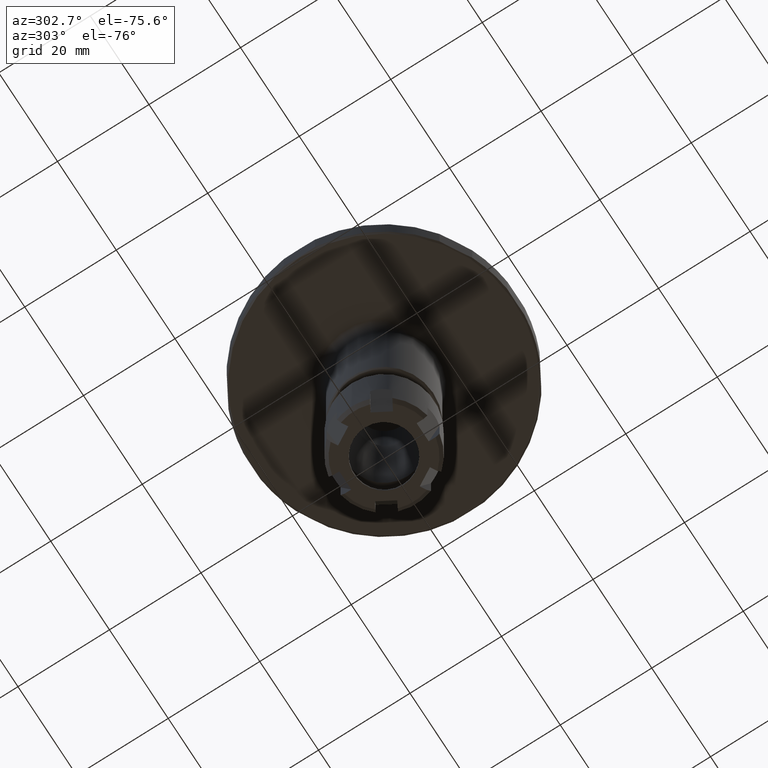
[diagram: clean part render]
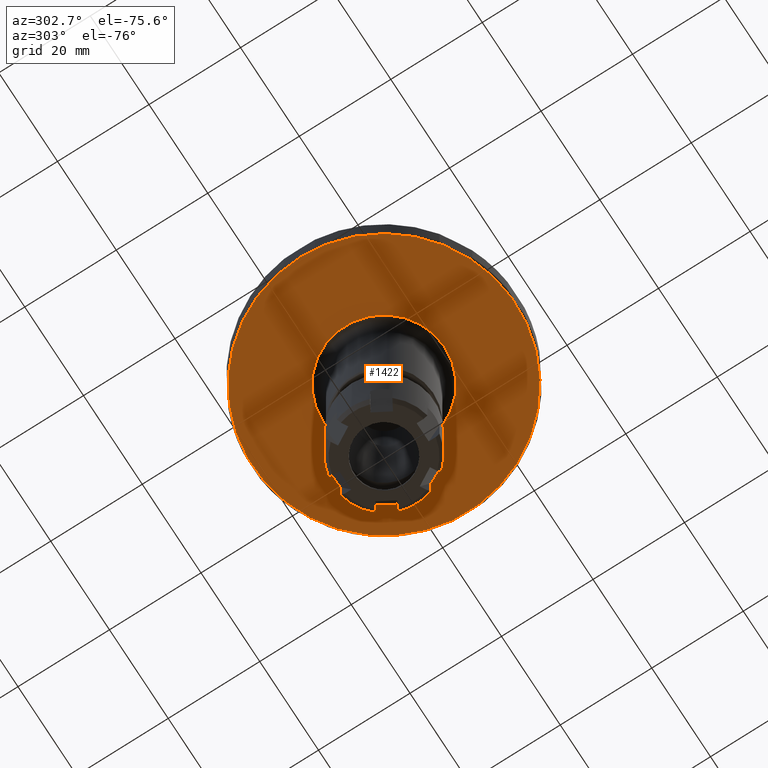
[diagram: same view with one face highlighted and labeled with its STEP entity id]
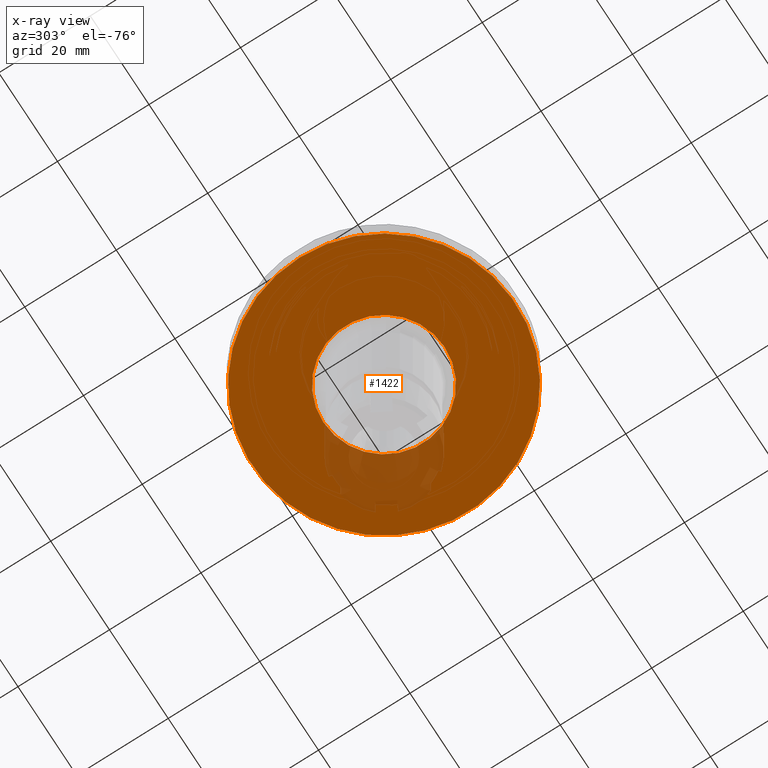
[diagram: x-ray of the same camera — body ghosted, the highlighted face saturated]
A machine part, auxiliary view. The second image highlights one B-rep face of the part: STEP entity #1422.
The next image is the same camera in x-ray: the body ghosted, the highlighted face saturated — about 11% of this face is hidden behind the body in this view.
In plain terms, the highlighted planar face has unit normal (0, -0, -1).
Its self-contained STEP definition (entity closure, byte-faithful):
#280=ORIENTED_EDGE('',*,*,#688,.T.);
#281=ORIENTED_EDGE('',*,*,#689,.T.);
#688=EDGE_CURVE('',#892,#892,#1038,.F.);
#689=EDGE_CURVE('',#893,#893,#1039,.T.);
#892=VERTEX_POINT('',#2148);
#893=VERTEX_POINT('',#2150);
#1038=CIRCLE('',#1534,13.25);
#1039=CIRCLE('',#1535,28.7);
#1114=EDGE_LOOP('',(#280));
#1115=EDGE_LOOP('',(#281));
#1250=FACE_BOUND('',#1114,.T.);
#1251=FACE_BOUND('',#1115,.T.);
#1386=PLANE('',#1533);
#1422=ADVANCED_FACE('',(#1250,#1251),#1386,.T.);
#1533=AXIS2_PLACEMENT_3D('',#2146,#1715,#1716);
#1534=AXIS2_PLACEMENT_3D('',#2147,#1717,#1718);
#1535=AXIS2_PLACEMENT_3D('',#2149,#1719,#1720);
#1715=DIRECTION('',(2.49783760049311E-16,-7.79579225983867E-33,-1.));
#1716=DIRECTION('',(-1.,6.12303176911188E-17,-2.49783760049311E-16));
#1717=DIRECTION('',(1.22464605849178E-16,1.51929083932157E-64,-1.));
#1718=DIRECTION('',(6.16297582203915E-33,1.,7.54746404904039E-49));
#1719=DIRECTION('',(1.22464605849178E-16,1.04225259501902E-17,-1.));
#1720=DIRECTION('',(-1.,-1.84889274661175E-32,-1.22464605849178E-16));
#2146=CARTESIAN_POINT('',(-21.5,1.31645183035906E-15,-7.00000000000001));
#2147=CARTESIAN_POINT('',(5.38954355443911E-16,1.94894806495966E-32,-7.));
#2148=CARTESIAN_POINT('',(5.38954355443911E-16,13.25,-7.));
#2149=CARTESIAN_POINT('',(5.8868771208351E-15,1.56337889252853E-16,-7.00000000000001));
#2150=CARTESIAN_POINT('',(-28.7,1.56337889252853E-16,-7.00000000000001));